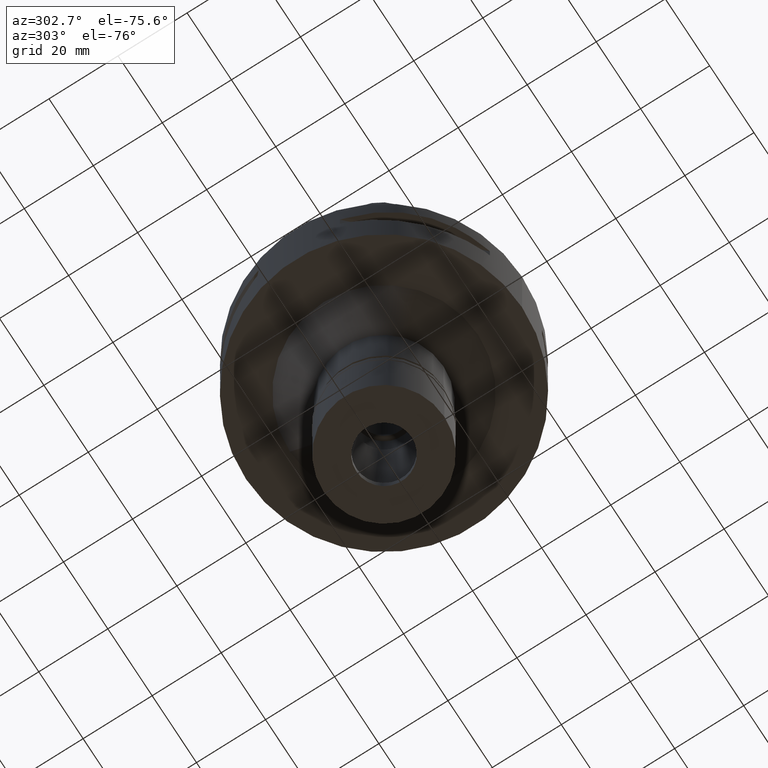
[diagram: clean part render]
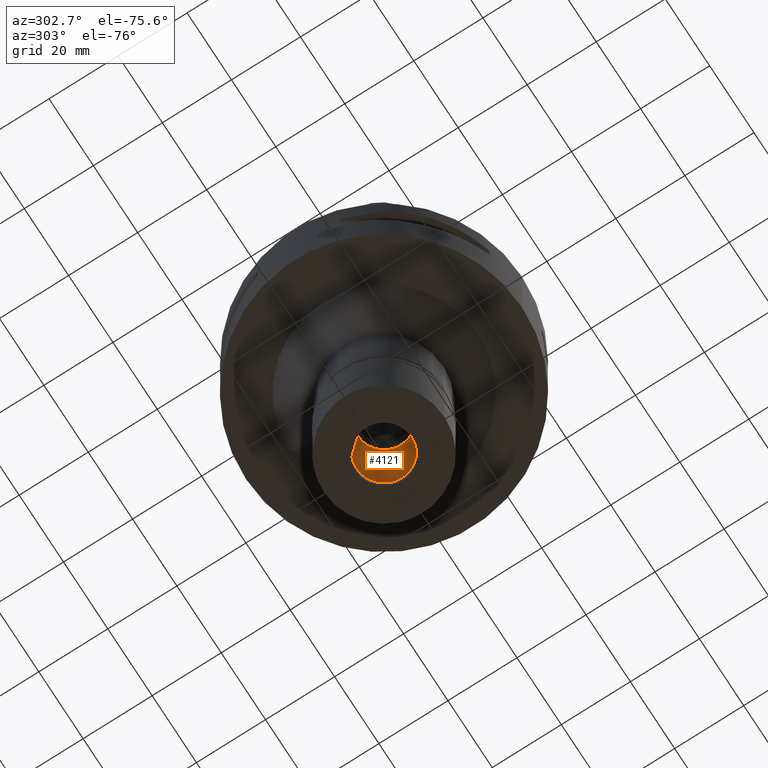
[diagram: same view with one face highlighted and labeled with its STEP entity id]
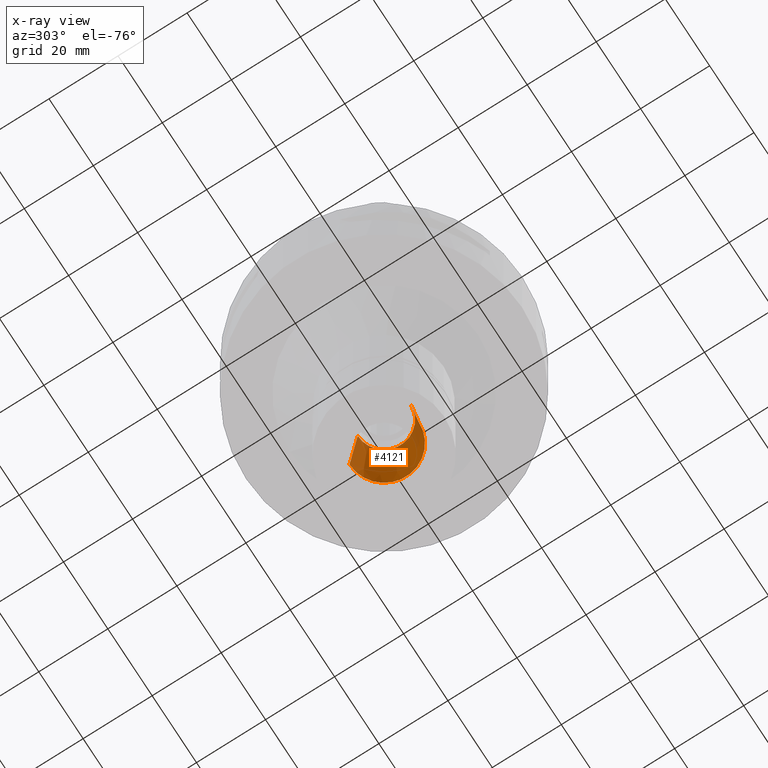
[diagram: x-ray of the same camera — body ghosted, the highlighted face saturated]
A machine part, auxiliary view. The second image highlights one B-rep face of the part: STEP entity #4121.
The next image is the same camera in x-ray: the body ghosted, the highlighted face saturated — about 7% of this face is hidden behind the body in this view.
In plain terms, the highlighted conical surface has half-angle 6 deg.
Its self-contained STEP definition (entity closure, byte-faithful):
#101 = CARTESIAN_POINT ( 'NONE',  ( 0.0000000000000000000, 0.0000000000000000000, -56.00000000000000000 ) ) ;
#255 = EDGE_CURVE ( 'NONE', #1959, #1457, #2739, .T. ) ;
#426 = ORIENTED_EDGE ( 'NONE', *, *, #1169, .T. ) ;
#589 = DIRECTION ( 'NONE',  ( 0.0000000000000000000, -1.000000000000000000, 0.0000000000000000000 ) ) ;
#755 = CARTESIAN_POINT ( 'NONE',  ( 0.0000000000000000000, -10.00000000000000000, -79.00000000000000000 ) ) ;
#830 = CONICAL_SURFACE ( 'NONE', #3117, 8.791301294444998859, 0.1047197551196402399 ) ;
#862 = CARTESIAN_POINT ( 'NONE',  ( 0.0000000000000000000, 10.00000000000000000, -79.00000000000000000 ) ) ;
#885 = LINE ( 'NONE', #862, #2274 ) ;
#916 = CARTESIAN_POINT ( 'NONE',  ( 0.0000000000000000000, 10.00000000000000000, -79.00000000000000000 ) ) ;
#1169 = EDGE_CURVE ( 'NONE', #4102, #2346, #1928, .T. ) ;
#1457 = VERTEX_POINT ( 'NONE', #4333 ) ;
#1468 = FACE_OUTER_BOUND ( 'NONE', #3437, .T. ) ;
#1575 = DIRECTION ( 'NONE',  ( 0.0000000000000000000, -0.1045284632676965891, 0.9945218953682687379 ) ) ;
#1870 = DIRECTION ( 'NONE',  ( 0.0000000000000000000, 1.000000000000000000, 0.0000000000000000000 ) ) ;
#1928 = CIRCLE ( 'NONE', #2583, 7.582602588890000384 ) ;
#1959 = VERTEX_POINT ( 'NONE', #916 ) ;
#2110 = EDGE_CURVE ( 'NONE', #1457, #4102, #3087, .T. ) ;
#2171 = EDGE_CURVE ( 'NONE', #1959, #2346, #885, .T. ) ;
#2190 = CARTESIAN_POINT ( 'NONE',  ( 0.0000000000000000000, -7.582602588889000295, -56.00000000000000000 ) ) ;
#2274 = VECTOR ( 'NONE', #1575, 1000.000000000000227 ) ;
#2346 = VERTEX_POINT ( 'NONE', #3388 ) ;
#2547 = CARTESIAN_POINT ( 'NONE',  ( 0.0000000000000000000, 0.0000000000000000000, -67.50000000000000000 ) ) ;
#2583 = AXIS2_PLACEMENT_3D ( 'NONE', #101, #4801, #4026 ) ;
#2739 = CIRCLE ( 'NONE', #3713, 10.00000000000000000 ) ;
#2961 = ORIENTED_EDGE ( 'NONE', *, *, #255, .T. ) ;
#3031 = ORIENTED_EDGE ( 'NONE', *, *, #2171, .F. ) ;
#3087 = LINE ( 'NONE', #755, #3404 ) ;
#3117 = AXIS2_PLACEMENT_3D ( 'NONE', #2547, #4561, #589 ) ;
#3382 = DIRECTION ( 'NONE',  ( 0.0000000000000000000, 0.0000000000000000000, -1.000000000000000000 ) ) ;
#3388 = CARTESIAN_POINT ( 'NONE',  ( 0.0000000000000000000, 7.582602588889000295, -56.00000000000000000 ) ) ;
#3404 = VECTOR ( 'NONE', #4242, 1000.000000000000227 ) ;
#3437 = EDGE_LOOP ( 'NONE', ( #2961, #5004, #426, #3031 ) ) ;
#3713 = AXIS2_PLACEMENT_3D ( 'NONE', #3838, #3382, #1870 ) ;
#3838 = CARTESIAN_POINT ( 'NONE',  ( 0.0000000000000000000, 0.0000000000000000000, -79.00000000000000000 ) ) ;
#4026 = DIRECTION ( 'NONE',  ( 0.0000000000000000000, -1.000000000000000000, 0.0000000000000000000 ) ) ;
#4102 = VERTEX_POINT ( 'NONE', #2190 ) ;
#4121 = ADVANCED_FACE ( 'NONE', ( #1468 ), #830, .F. ) ;
#4242 = DIRECTION ( 'NONE',  ( 0.0000000000000000000, 0.1045284632676965891, 0.9945218953682687379 ) ) ;
#4333 = CARTESIAN_POINT ( 'NONE',  ( 0.0000000000000000000, -10.00000000000000000, -79.00000000000000000 ) ) ;
#4561 = DIRECTION ( 'NONE',  ( 0.0000000000000000000, 0.0000000000000000000, -1.000000000000000000 ) ) ;
#4801 = DIRECTION ( 'NONE',  ( 0.0000000000000000000, 0.0000000000000000000, 1.000000000000000000 ) ) ;
#5004 = ORIENTED_EDGE ( 'NONE', *, *, #2110, .T. ) ;